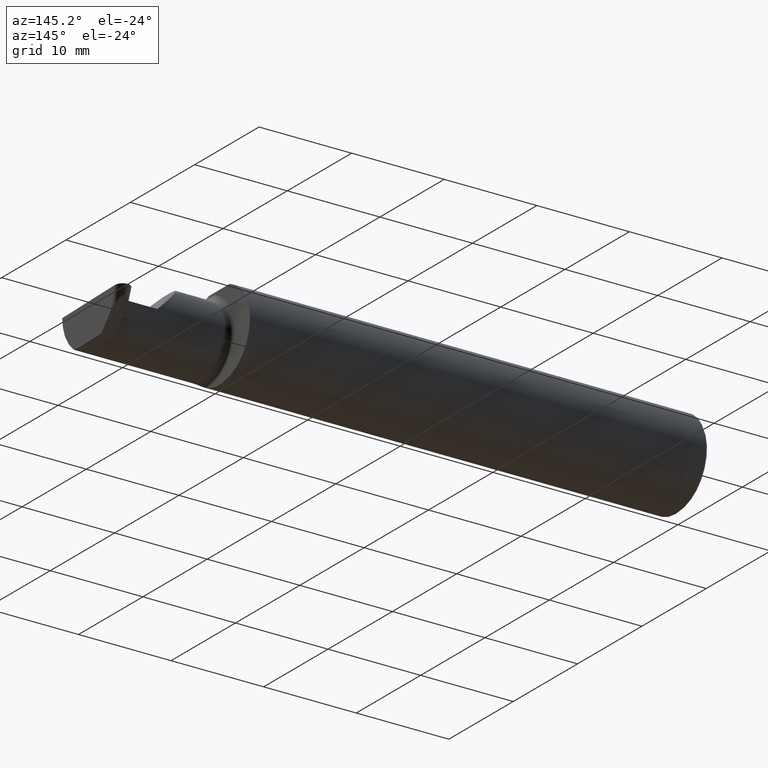
[diagram: clean part render]
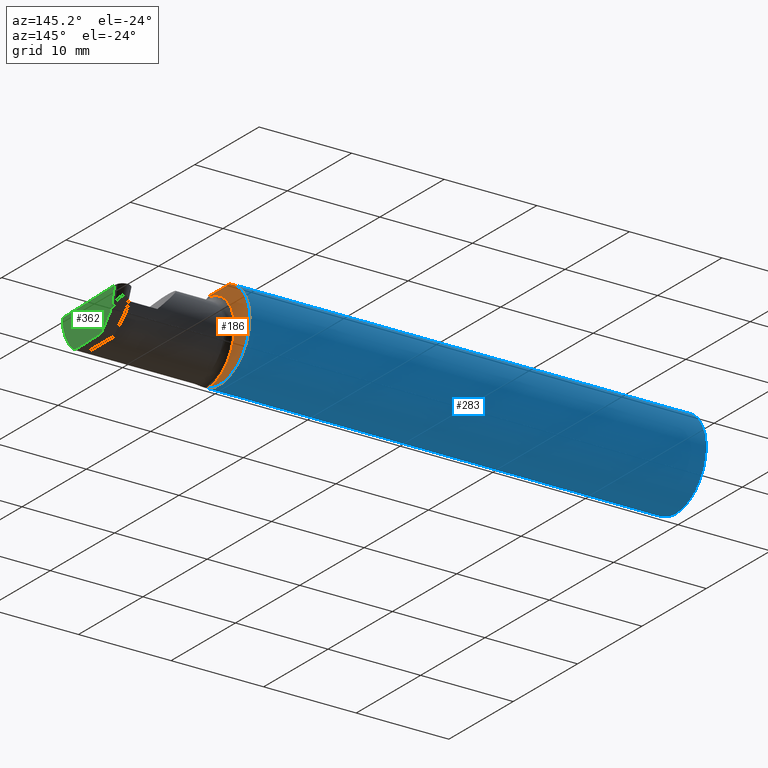
[diagram: same view with three faces highlighted in distinct colors, each labeled with its STEP entity id]
A machine part, auxiliary view with three faces highlighted in distinct colors.
Their STEP definitions:

[orange] entity #186 — the highlighted planar face has unit normal (1, 0, 0).
#16 = CIRCLE ( 'NONE', #401, 0.1873499999999999888 ) ;
#28 = ORIENTED_EDGE ( 'NONE', *, *, #264, .T. ) ;
#34 = CARTESIAN_POINT ( 'NONE',  ( 1.949999999999999956, -0.08335000000000000742, 0.000000000000000000 ) ) ;
#55 = VERTEX_POINT ( 'NONE', #128 ) ;
#90 = DIRECTION ( 'NONE',  ( -1.000000000000000000, -3.506966766154694863E-17, -0.000000000000000000 ) ) ;
#93 = CARTESIAN_POINT ( 'NONE',  ( 1.949999999999999956, 0.1873499999999999055, 0.000000000000000000 ) ) ;
#98 = CARTESIAN_POINT ( 'NONE',  ( 1.949999999999999956, 0.06325108694718235836, 0.1763499999999999235 ) ) ;
#128 = CARTESIAN_POINT ( 'NONE',  ( 1.949999999999999956, -0.06851976604679065053, -0.1743704796142198643 ) ) ;
#144 = CARTESIAN_POINT ( 'NONE',  ( 1.949999999999999956, -0.06851976604679065053, 0.1743704796142198643 ) ) ;
#157 = ORIENTED_EDGE ( 'NONE', *, *, #617, .T. ) ;
#173 = ORIENTED_EDGE ( 'NONE', *, *, #418, .F. ) ;
#180 = CIRCLE ( 'NONE', #250, 0.1873499999999999888 ) ;
#185 = ORIENTED_EDGE ( 'NONE', *, *, #475, .T. ) ;
#186 = ADVANCED_FACE ( 'NONE', ( #305 ), #461, .T. ) ;
#214 = LINE ( 'NONE', #428, #518 ) ;
#226 = EDGE_LOOP ( 'NONE', ( #185, #173, #157, #28 ) ) ;
#250 = AXIS2_PLACEMENT_3D ( 'NONE', #269, #590, #533 ) ;
#264 = EDGE_CURVE ( 'NONE', #650, #55, #562, .T. ) ;
#269 = CARTESIAN_POINT ( 'NONE',  ( 1.949999999999999956, 0.000000000000000000, 0.000000000000000000 ) ) ;
#301 = DIRECTION ( 'NONE',  ( 0.000000000000000000, -1.000000000000000000, 0.000000000000000000 ) ) ;
#305 = FACE_OUTER_BOUND ( 'NONE', #226, .T. ) ;
#341 = AXIS2_PLACEMENT_3D ( 'NONE', #34, #90, #301 ) ;
#365 = DIRECTION ( 'NONE',  ( -3.506966766154694863E-17, 1.000000000000000000, 0.000000000000000000 ) ) ;
#373 = CARTESIAN_POINT ( 'NONE',  ( 1.949999999999999956, -0.06325108694718283020, 0.1763499999999999235 ) ) ;
#401 = AXIS2_PLACEMENT_3D ( 'NONE', #633, #569, #566 ) ;
#418 = EDGE_CURVE ( 'NONE', #597, #655, #214, .T. ) ;
#428 = CARTESIAN_POINT ( 'NONE',  ( 1.949999999999999956, 0.1873499999999998222, 0.1763499999999999235 ) ) ;
#461 = PLANE ( 'NONE',  #674 ) ;
#466 = DIRECTION ( 'NONE',  ( 1.000000000000000000, 3.506966766154694863E-17, 0.000000000000000000 ) ) ;
#475 = EDGE_CURVE ( 'NONE', #55, #655, #16, .T. ) ;
#518 = VECTOR ( 'NONE', #653, 39.37007874015748143 ) ;
#533 = DIRECTION ( 'NONE',  ( 0.000000000000000000, 1.000000000000000000, 0.000000000000000000 ) ) ;
#562 = CIRCLE ( 'NONE', #341, 0.1749999999999999889 ) ;
#566 = DIRECTION ( 'NONE',  ( 0.000000000000000000, 1.000000000000000000, 0.000000000000000000 ) ) ;
#569 = DIRECTION ( 'NONE',  ( 1.000000000000000000, 3.506966766154694863E-17, 0.000000000000000000 ) ) ;
#590 = DIRECTION ( 'NONE',  ( 1.000000000000000000, 3.506966766154694863E-17, 0.000000000000000000 ) ) ;
#597 = VERTEX_POINT ( 'NONE', #373 ) ;
#617 = EDGE_CURVE ( 'NONE', #597, #650, #180, .T. ) ;
#633 = CARTESIAN_POINT ( 'NONE',  ( 1.949999999999999956, 0.000000000000000000, 0.000000000000000000 ) ) ;
#650 = VERTEX_POINT ( 'NONE', #144 ) ;
#653 = DIRECTION ( 'NONE',  ( -3.506966766154694863E-17, 1.000000000000000000, 0.000000000000000000 ) ) ;
#655 = VERTEX_POINT ( 'NONE', #98 ) ;
#674 = AXIS2_PLACEMENT_3D ( 'NONE', #93, #466, #365 ) ;

[blue] entity #283 — the highlighted cylindrical surface (partial cylindrical patch) has radius 4.7587 mm, axis along (-1, -0, -0).
#16 = CIRCLE ( 'NONE', #401, 0.1873499999999999888 ) ;
#17 = DIRECTION ( 'NONE',  ( -1.000000000000000000, -0.000000000000000000, -0.000000000000000000 ) ) ;
#37 = LINE ( 'NONE', #413, #609 ) ;
#44 = CARTESIAN_POINT ( 'NONE',  ( 0.000000000000000000, 0.06325108694718235836, 0.1763499999999999235 ) ) ;
#48 = CARTESIAN_POINT ( 'NONE',  ( 1.951829077486400221, -0.08839624499054647699, 0.1652742498708037466 ) ) ;
#52 = CARTESIAN_POINT ( 'NONE',  ( 1.974999999999999867, -0.1172600179964006784, 0.1461167706989303650 ) ) ;
#55 = VERTEX_POINT ( 'NONE', #128 ) ;
#68 = DIRECTION ( 'NONE',  ( -1.000000000000000000, -0.000000000000000000, -0.000000000000000000 ) ) ;
#74 = EDGE_CURVE ( 'NONE', #644, #685, #574, .T. ) ;
#81 = VECTOR ( 'NONE', #255, 39.37007874015748143 ) ;
#85 = CARTESIAN_POINT ( 'NONE',  ( 2.202189699843948301, -0.1873500000000000443, 0.05781030015605120170 ) ) ;
#89 = CARTESIAN_POINT ( 'NONE',  ( 1.951843912362378308, -0.08846956905169088559, -0.1652353808078972919 ) ) ;
#97 = CARTESIAN_POINT ( 'NONE',  ( 2.488131149766799943, -0.1873499999999999888, 0.000000000000000000 ) ) ;
#98 = CARTESIAN_POINT ( 'NONE',  ( 1.949999999999999956, 0.06325108694718235836, 0.1763499999999999235 ) ) ;
#102 = B_SPLINE_CURVE_WITH_KNOTS ( 'NONE', 3,
 ( #308, #151, #202, #48, #683, #344, #567, #254, #704, #397, #171, #454 ),
 .UNSPECIFIED., .F., .F.,
 ( 4, 2, 2, 2, 2, 4 ),
 ( 4.423516731080767705E-05, 0.0004615475116586702166, 0.0008788598560065327562, 0.001296172200354395350, 0.001504828372528326267, 0.001713484544702257402 ),
 .UNSPECIFIED. ) ;
#113 = VERTEX_POINT ( 'NONE', #52 ) ;
#114 = EDGE_CURVE ( 'NONE', #650, #113, #102, .T. ) ;
#119 = VERTEX_POINT ( 'NONE', #573 ) ;
#122 = EDGE_LOOP ( 'NONE', ( #215, #328, #492, #141, #364, #383, #278, #659, #560, #368, #335, #354, #600 ) ) ;
#128 = CARTESIAN_POINT ( 'NONE',  ( 1.949999999999999956, -0.06851976604679065053, -0.1743704796142198643 ) ) ;
#129 = CARTESIAN_POINT ( 'NONE',  ( 2.488131149766799943, -0.1873499999999999888, 0.000000000000000000 ) ) ;
#137 = VERTEX_POINT ( 'NONE', #299 ) ;
#141 = ORIENTED_EDGE ( 'NONE', *, *, #451, .T. ) ;
#144 = CARTESIAN_POINT ( 'NONE',  ( 1.949999999999999956, -0.06851976604679065053, 0.1743704796142198643 ) ) ;
#146 = DIRECTION ( 'NONE',  ( 1.000000000000000000, 0.000000000000000000, 0.000000000000000000 ) ) ;
#147 = VECTOR ( 'NONE', #17, 39.37007874015748143 ) ;
#151 = CARTESIAN_POINT ( 'NONE',  ( 1.949999999999999956, -0.07367581953296703512, 0.1723443821957854338 ) ) ;
#156 = LINE ( 'NONE', #537, #608 ) ;
#159 = AXIS2_PLACEMENT_3D ( 'NONE', #592, #146, #190 ) ;
#169 = CARTESIAN_POINT ( 'NONE',  ( 0.000000000000000000, 0.000000000000000000, 0.000000000000000000 ) ) ;
#171 = CARTESIAN_POINT ( 'NONE',  ( 1.972161949849307927, -0.1172600179964061184, 0.1461167706989260073 ) ) ;
#176 = VERTEX_POINT ( 'NONE', #97 ) ;
#180 = CIRCLE ( 'NONE', #250, 0.1873499999999999888 ) ;
#184 = CARTESIAN_POINT ( 'NONE',  ( 2.487084196965268390, -0.1623470442677540926, -0.1099340280425339100 ) ) ;
#187 = CARTESIAN_POINT ( 'NONE',  ( 2.487121452143546296, -0.1873500000000000165, -0.05781030015605123640 ) ) ;
#190 = DIRECTION ( 'NONE',  ( 0.000000000000000000, 0.000000000000000000, -1.000000000000000000 ) ) ;
#202 = CARTESIAN_POINT ( 'NONE',  ( 1.950353553376444671, -0.07868116735658675642, 0.1701139256562800295 ) ) ;
#207 = LINE ( 'NONE', #539, #147 ) ;
#215 = ORIENTED_EDGE ( 'NONE', *, *, #564, .F. ) ;
#232 = EDGE_CURVE ( 'NONE', #685, #119, #237, .T. ) ;
#236 = CARTESIAN_POINT ( 'NONE',  ( 1.972174967710398796, -0.1172600179964006228, -0.1461167706989304205 ) ) ;
#237 = CIRCLE ( 'NONE', #159, 0.1873499999999999888 ) ;
#250 = AXIS2_PLACEMENT_3D ( 'NONE', #269, #590, #533 ) ;
#254 = CARTESIAN_POINT ( 'NONE',  ( 1.963163223656403389, -0.1119926267047277602, 0.1502091925606062750 ) ) ;
#255 = DIRECTION ( 'NONE',  ( -1.000000000000000000, -0.000000000000000000, -0.000000000000000000 ) ) ;
#269 = CARTESIAN_POINT ( 'NONE',  ( 1.949999999999999956, 0.000000000000000000, 0.000000000000000000 ) ) ;
#278 = ORIENTED_EDGE ( 'NONE', *, *, #617, .F. ) ;
#283 = ADVANCED_FACE ( 'NONE', ( #638 ), #557, .T. ) ;
#293 = VERTEX_POINT ( 'NONE', #488 ) ;
#294 = DIRECTION ( 'NONE',  ( 1.000000000000000000, 3.506966766154694863E-17, 0.000000000000000000 ) ) ;
#299 = CARTESIAN_POINT ( 'NONE',  ( 1.974999999999999867, -0.1172600179964005396, -0.1461167706989303927 ) ) ;
#300 = CARTESIAN_POINT ( 'NONE',  ( 1.949999999999999956, -0.06851976604679065053, -0.1743704796142198643 ) ) ;
#308 = CARTESIAN_POINT ( 'NONE',  ( 1.949999999999999956, -0.06851976604679065053, 0.1743704796142198643 ) ) ;
#312 = B_SPLINE_CURVE_WITH_KNOTS ( 'NONE', 3,
 ( #626, #236, #517, #456, #581, #411, #677, #510, #89, #460, #681, #300 ),
 .UNSPECIFIED., .F., .F.,
 ( 4, 2, 2, 2, 2, 4 ),
 ( 1.967976973726874814E-07, 0.0002120314145722347263, 0.0004238660314470967276, 0.0008475352651968083703, 0.001271204498946519905, 0.001694873732696231547 ),
 .UNSPECIFIED. ) ;
#322 = VECTOR ( 'NONE', #670, 39.37007874015748143 ) ;
#328 = ORIENTED_EDGE ( 'NONE', *, *, #542, .T. ) ;
#335 = ORIENTED_EDGE ( 'NONE', *, *, #657, .F. ) ;
#344 = CARTESIAN_POINT ( 'NONE',  ( 1.956287624083520305, -0.1021858045380145824, 0.1571187174372875861 ) ) ;
#353 =( BOUNDED_CURVE ( )  B_SPLINE_CURVE ( 3, ( #577, #85, #689, #467 ),
 .UNSPECIFIED., .F., .T. ) 
 B_SPLINE_CURVE_WITH_KNOTS ( ( 4, 4 ),
 ( 4.712388980384688786, 5.606916381293139295 ),
 .UNSPECIFIED. ) 
 CURVE ( )  GEOMETRIC_REPRESENTATION_ITEM ( )  RATIONAL_B_SPLINE_CURVE ( ( 1.000000000000000000, 0.9344226172588797619, 0.9344226172588797619, 1.000000000000000000 ) ) 
 REPRESENTATION_ITEM ( '' )  );
#354 = ORIENTED_EDGE ( 'NONE', *, *, #475, .F. ) ;
#356 = AXIS2_PLACEMENT_3D ( 'NONE', #516, #525, #695 ) ;
#363 = CARTESIAN_POINT ( 'NONE',  ( 0.009999999999999346217, -0.06325108694718235836, 0.1763499999999999235 ) ) ;
#364 = ORIENTED_EDGE ( 'NONE', *, *, #464, .F. ) ;
#366 = LINE ( 'NONE', #44, #81 ) ;
#368 = ORIENTED_EDGE ( 'NONE', *, *, #232, .T. ) ;
#373 = CARTESIAN_POINT ( 'NONE',  ( 1.949999999999999956, -0.06325108694718283020, 0.1763499999999999235 ) ) ;
#377 = EDGE_CURVE ( 'NONE', #644, #597, #393, .T. ) ;
#383 = ORIENTED_EDGE ( 'NONE', *, *, #114, .F. ) ;
#384 = CARTESIAN_POINT ( 'NONE',  ( 2.113883229301068312, -0.1172600179964003175, 0.1461167706989304760 ) ) ;
#393 = LINE ( 'NONE', #607, #322 ) ;
#394 =( BOUNDED_CURVE ( )  B_SPLINE_CURVE ( 3, ( #622, #184, #187, #129 ),
 .UNSPECIFIED., .F., .F. ) 
 B_SPLINE_CURVE_WITH_KNOTS ( ( 4, 4 ),
 ( 5.852427379562187504, 6.746954780470635349 ),
 .UNSPECIFIED. ) 
 CURVE ( )  GEOMETRIC_REPRESENTATION_ITEM ( )  RATIONAL_B_SPLINE_CURVE ( ( 1.000000000000000000, 0.9344226172588802060, 0.9344226172588802060, 1.000000000000000000 ) ) 
 REPRESENTATION_ITEM ( '' )  );
#397 = CARTESIAN_POINT ( 'NONE',  ( 1.969481469043492305, -0.1163560528186166343, 0.1468472430636323378 ) ) ;
#401 = AXIS2_PLACEMENT_3D ( 'NONE', #633, #569, #566 ) ;
#411 = CARTESIAN_POINT ( 'NONE',  ( 1.958439486659306894, -0.1064616213911157294, -0.1542305641651501580 ) ) ;
#413 = CARTESIAN_POINT ( 'NONE',  ( 2.205930449999999876, -0.1172600179964006090, 0.1461167706989303927 ) ) ;
#421 = VERTEX_POINT ( 'NONE', #384 ) ;
#451 = EDGE_CURVE ( 'NONE', #293, #421, #353, .T. ) ;
#454 = CARTESIAN_POINT ( 'NONE',  ( 1.974999999999999867, -0.1172600179964006784, 0.1461167706989303650 ) ) ;
#456 = CARTESIAN_POINT ( 'NONE',  ( 1.965028532764137914, -0.1137241120808234196, -0.1488947809299404346 ) ) ;
#460 = CARTESIAN_POINT ( 'NONE',  ( 1.950358271039143165, -0.07873626113568077400, -0.1700887912276895508 ) ) ;
#464 = EDGE_CURVE ( 'NONE', #113, #421, #37, .T. ) ;
#467 = CARTESIAN_POINT ( 'NONE',  ( 2.113883229301068312, -0.1172600179964003175, 0.1461167706989304760 ) ) ;
#475 = EDGE_CURVE ( 'NONE', #55, #655, #16, .T. ) ;
#476 = CARTESIAN_POINT ( 'NONE',  ( 2.488026713523223243, -0.1172600179964006090, -0.1461167706989303927 ) ) ;
#488 = CARTESIAN_POINT ( 'NONE',  ( 2.260000000000000231, -0.1873499999999999888, 2.939152317953647352E-17 ) ) ;
#492 = ORIENTED_EDGE ( 'NONE', *, *, #675, .T. ) ;
#510 = CARTESIAN_POINT ( 'NONE',  ( 1.952960551809340917, -0.09317341542745738447, -0.1626248379125197208 ) ) ;
#514 = AXIS2_PLACEMENT_3D ( 'NONE', #169, #68, #703 ) ;
#516 = CARTESIAN_POINT ( 'NONE',  ( 0.009999999999999346217, 0.000000000000000000, 0.000000000000000000 ) ) ;
#517 = CARTESIAN_POINT ( 'NONE',  ( 1.969511795768554396, -0.1163687266324233555, -0.1468371510166789906 ) ) ;
#525 = DIRECTION ( 'NONE',  ( 1.000000000000000000, 0.000000000000000000, 0.000000000000000000 ) ) ;
#529 = EDGE_CURVE ( 'NONE', #137, #55, #312, .T. ) ;
#533 = DIRECTION ( 'NONE',  ( 0.000000000000000000, 1.000000000000000000, 0.000000000000000000 ) ) ;
#537 = CARTESIAN_POINT ( 'NONE',  ( 2.205930449999999876, -0.1172600179964006090, -0.1461167706989303927 ) ) ;
#539 = CARTESIAN_POINT ( 'NONE',  ( 3.749399456654646757E-32, -0.1873499999999999610, 3.061616997868383634E-16 ) ) ;
#542 = EDGE_CURVE ( 'NONE', #661, #176, #394, .T. ) ;
#557 = CYLINDRICAL_SURFACE ( 'NONE', #514, 0.1873499999999999888 ) ;
#560 = ORIENTED_EDGE ( 'NONE', *, *, #74, .T. ) ;
#564 = EDGE_CURVE ( 'NONE', #661, #137, #156, .T. ) ;
#566 = DIRECTION ( 'NONE',  ( 0.000000000000000000, 1.000000000000000000, 0.000000000000000000 ) ) ;
#567 = CARTESIAN_POINT ( 'NONE',  ( 1.958475602106621860, -0.1064978748893406074, 0.1542035505680383611 ) ) ;
#569 = DIRECTION ( 'NONE',  ( 1.000000000000000000, 3.506966766154694863E-17, 0.000000000000000000 ) ) ;
#573 = CARTESIAN_POINT ( 'NONE',  ( 0.009999999999999346217, 0.06325108694718235836, 0.1763499999999999235 ) ) ;
#574 = CIRCLE ( 'NONE', #356, 0.1873499999999999888 ) ;
#577 = CARTESIAN_POINT ( 'NONE',  ( 2.260000000000000231, -0.1873499999999999888, 2.939152317953647352E-17 ) ) ;
#581 = CARTESIAN_POINT ( 'NONE',  ( 1.963203859946833330, -0.1120371980050637317, -0.1501764597936559864 ) ) ;
#590 = DIRECTION ( 'NONE',  ( 1.000000000000000000, 3.506966766154694863E-17, 0.000000000000000000 ) ) ;
#592 = CARTESIAN_POINT ( 'NONE',  ( 0.009999999999999346217, 0.000000000000000000, 0.000000000000000000 ) ) ;
#597 = VERTEX_POINT ( 'NONE', #373 ) ;
#600 = ORIENTED_EDGE ( 'NONE', *, *, #529, .F. ) ;
#607 = CARTESIAN_POINT ( 'NONE',  ( 0.000000000000000000, -0.06325108694718235836, 0.1763499999999999235 ) ) ;
#608 = VECTOR ( 'NONE', #692, 39.37007874015748143 ) ;
#609 = VECTOR ( 'NONE', #294, 39.37007874015748143 ) ;
#612 = CARTESIAN_POINT ( 'NONE',  ( 0.009999999999999346217, 0.000000000000000000, -0.1873499999999999888 ) ) ;
#617 = EDGE_CURVE ( 'NONE', #597, #650, #180, .T. ) ;
#622 = CARTESIAN_POINT ( 'NONE',  ( 2.488026713523223243, -0.1172600179964006090, -0.1461167706989303927 ) ) ;
#626 = CARTESIAN_POINT ( 'NONE',  ( 1.974999999999999867, -0.1172600179964005396, -0.1461167706989303927 ) ) ;
#633 = CARTESIAN_POINT ( 'NONE',  ( 1.949999999999999956, 0.000000000000000000, 0.000000000000000000 ) ) ;
#638 = FACE_OUTER_BOUND ( 'NONE', #122, .T. ) ;
#644 = VERTEX_POINT ( 'NONE', #363 ) ;
#650 = VERTEX_POINT ( 'NONE', #144 ) ;
#655 = VERTEX_POINT ( 'NONE', #98 ) ;
#657 = EDGE_CURVE ( 'NONE', #655, #119, #366, .T. ) ;
#659 = ORIENTED_EDGE ( 'NONE', *, *, #377, .F. ) ;
#661 = VERTEX_POINT ( 'NONE', #476 ) ;
#670 = DIRECTION ( 'NONE',  ( 1.000000000000000000, 0.000000000000000000, 0.000000000000000000 ) ) ;
#675 = EDGE_CURVE ( 'NONE', #176, #293, #207, .T. ) ;
#677 = CARTESIAN_POINT ( 'NONE',  ( 1.956304331342286762, -0.1022198306720689676, -0.1570962426853819427 ) ) ;
#681 = CARTESIAN_POINT ( 'NONE',  ( 1.949999999999999067, -0.07368234487347190276, -0.1723418180300748115 ) ) ;
#683 = CARTESIAN_POINT ( 'NONE',  ( 1.952945243422982591, -0.09312071749437422774, 0.1626553472577906834 ) ) ;
#685 = VERTEX_POINT ( 'NONE', #612 ) ;
#689 = CARTESIAN_POINT ( 'NONE',  ( 2.150065971957464850, -0.1623470442677540371, 0.1099340280425340488 ) ) ;
#692 = DIRECTION ( 'NONE',  ( -1.000000000000000000, -3.506966766154694863E-17, -0.000000000000000000 ) ) ;
#695 = DIRECTION ( 'NONE',  ( 0.000000000000000000, 0.000000000000000000, -1.000000000000000000 ) ) ;
#703 = DIRECTION ( 'NONE',  ( 0.000000000000000000, 0.000000000000000000, 1.000000000000000000 ) ) ;
#704 = CARTESIAN_POINT ( 'NONE',  ( 1.965004157323697598, -0.1137044537483316436, 0.1489098419202428414 ) ) ;

[green] entity #362 — the highlighted planar face has unit normal (-0.9992, 0.0349, 0.0175).
#3 = CARTESIAN_POINT ( 'NONE',  ( 2.489143054109411057, -0.08335000000000006293, -0.1500000000000000500 ) ) ;
#5 = VECTOR ( 'NONE', #15, 39.37007874015748143 ) ;
#15 = DIRECTION ( 'NONE',  ( -0.03701744261649735079, -0.7066221440565398915, -0.7066221440565479961 ) ) ;
#18 = ORIENTED_EDGE ( 'NONE', *, *, #317, .F. ) ;
#26 = EDGE_CURVE ( 'NONE', #706, #680, #342, .T. ) ;
#29 = CARTESIAN_POINT ( 'NONE',  ( 2.488744025780163405, -0.09477667630339421667, -0.1500000000000000222 ) ) ;
#59 = VERTEX_POINT ( 'NONE', #78 ) ;
#77 = CARTESIAN_POINT ( 'NONE',  ( 2.499944547461123268, 0.1507395558974708727, 0.0004036622306032532342 ) ) ;
#78 = CARTESIAN_POINT ( 'NONE',  ( 2.499932917084233264, 0.1506083980881225692, 0.000000000000000000 ) ) ;
#97 = CARTESIAN_POINT ( 'NONE',  ( 2.488131149766799943, -0.1873499999999999888, 0.000000000000000000 ) ) ;
#120 = CARTESIAN_POINT ( 'NONE',  ( 2.499980768683121024, 0.1519786885938757826, 0.000000000000000000 ) ) ;
#123 = DIRECTION ( 'NONE',  ( 0.02739170151059983765, 0.3089010440752013031, 0.9506996579664920288 ) ) ;
#124 = DIRECTION ( 'NONE',  ( -0.03489949670249307273, -0.9993908270190959842, 0.000000000000000000 ) ) ;
#129 = CARTESIAN_POINT ( 'NONE',  ( 2.488131149766799943, -0.1873499999999999888, 0.000000000000000000 ) ) ;
#134 = VECTOR ( 'NONE', #124, 39.37007874015748854 ) ;
#166 = DIRECTION ( 'NONE',  ( -0.03489949670249308661, -0.9993908270190960952, 0.000000000000000000 ) ) ;
#176 = VERTEX_POINT ( 'NONE', #97 ) ;
#177 = LINE ( 'NONE', #120, #552 ) ;
#184 = CARTESIAN_POINT ( 'NONE',  ( 2.487084196965268390, -0.1623470442677540926, -0.1099340280425339100 ) ) ;
#187 = CARTESIAN_POINT ( 'NONE',  ( 2.487121452143546296, -0.1873500000000000165, -0.05781030015605123640 ) ) ;
#193 = CARTESIAN_POINT ( 'NONE',  ( 2.489143054109411057, -0.08335000000000006293, -0.1500000000000000500 ) ) ;
#206 = VECTOR ( 'NONE', #123, 39.37007874015747433 ) ;
#208 =( BOUNDED_CURVE ( )  B_SPLINE_CURVE ( 3, ( #343, #522, #29, #193 ),
 .UNSPECIFIED., .F., .F. ) 
 B_SPLINE_CURVE_WITH_KNOTS ( ( 4, 4 ),
 ( 0.8789888184544045746, 1.107026853503847663 ),
 .UNSPECIFIED. ) 
 CURVE ( )  GEOMETRIC_REPRESENTATION_ITEM ( )  RATIONAL_B_SPLINE_CURVE ( ( 1.000000000000000000, 0.9956712472009929815, 0.9956712472009929815, 1.000000000000000000 ) ) 
 REPRESENTATION_ITEM ( '' )  );
#220 = CARTESIAN_POINT ( 'NONE',  ( 2.494159529209134529, 0.06030305154315079852, -0.1500000000000000500 ) ) ;
#227 = DIRECTION ( 'NONE',  ( -0.03489949670249307273, -0.9993908270190959842, 0.000000000000000000 ) ) ;
#252 = ORIENTED_EDGE ( 'NONE', *, *, #26, .F. ) ;
#280 = ORIENTED_EDGE ( 'NONE', *, *, #490, .T. ) ;
#281 = CARTESIAN_POINT ( 'NONE',  ( 2.499980768683121024, 0.1519786885938757826, 0.000000000000000000 ) ) ;
#317 = EDGE_CURVE ( 'NONE', #406, #706, #664, .T. ) ;
#325 = EDGE_CURVE ( 'NONE', #59, #176, #177, .T. ) ;
#342 = LINE ( 'NONE', #565, #134 ) ;
#343 = CARTESIAN_POINT ( 'NONE',  ( 2.488026713523223243, -0.1172600179964006090, -0.1461167706989303927 ) ) ;
#362 = ADVANCED_FACE ( 'NONE', ( #541 ), #619, .F. ) ;
#378 = AXIS2_PLACEMENT_3D ( 'NONE', #281, #483, #227 ) ;
#394 =( BOUNDED_CURVE ( )  B_SPLINE_CURVE ( 3, ( #622, #184, #187, #129 ),
 .UNSPECIFIED., .F., .F. ) 
 B_SPLINE_CURVE_WITH_KNOTS ( ( 4, 4 ),
 ( 5.852427379562187504, 6.746954780470635349 ),
 .UNSPECIFIED. ) 
 CURVE ( )  GEOMETRIC_REPRESENTATION_ITEM ( )  RATIONAL_B_SPLINE_CURVE ( ( 1.000000000000000000, 0.9344226172588802060, 0.9344226172588802060, 1.000000000000000000 ) ) 
 REPRESENTATION_ITEM ( '' )  );
#406 = VERTEX_POINT ( 'NONE', #651 ) ;
#440 = EDGE_CURVE ( 'NONE', #406, #59, #465, .T. ) ;
#450 = CARTESIAN_POINT ( 'NONE',  ( 2.496599625675735457, 0.1068818013178887832, -0.1034212502252615240 ) ) ;
#465 = LINE ( 'NONE', #77, #206 ) ;
#476 = CARTESIAN_POINT ( 'NONE',  ( 2.488026713523223243, -0.1172600179964006090, -0.1461167706989303927 ) ) ;
#483 = DIRECTION ( 'NONE',  ( -0.9992386149554828290, 0.03489418134010577321, 0.01745240643728358798 ) ) ;
#490 = EDGE_CURVE ( 'NONE', #661, #680, #208, .T. ) ;
#522 = CARTESIAN_POINT ( 'NONE',  ( 2.488370294460939824, -0.1061291577212408743, -0.1486999626928446339 ) ) ;
#541 = FACE_OUTER_BOUND ( 'NONE', #663, .T. ) ;
#542 = EDGE_CURVE ( 'NONE', #661, #176, #394, .T. ) ;
#552 = VECTOR ( 'NONE', #166, 39.37007874015747433 ) ;
#565 = CARTESIAN_POINT ( 'NONE',  ( 2.489440290287315172, -0.07483826952468648763, -0.1500000000000000500 ) ) ;
#619 = PLANE ( 'NONE',  #378 ) ;
#622 = CARTESIAN_POINT ( 'NONE',  ( 2.488026713523223243, -0.1172600179964006090, -0.1461167706989303927 ) ) ;
#651 = CARTESIAN_POINT ( 'NONE',  ( 2.497385173767516786, 0.1218770478189730444, -0.08842600372417708243 ) ) ;
#661 = VERTEX_POINT ( 'NONE', #476 ) ;
#663 = EDGE_LOOP ( 'NONE', ( #18, #693, #697, #676, #280, #252 ) ) ;
#664 = LINE ( 'NONE', #450, #5 ) ;
#676 = ORIENTED_EDGE ( 'NONE', *, *, #542, .F. ) ;
#680 = VERTEX_POINT ( 'NONE', #3 ) ;
#693 = ORIENTED_EDGE ( 'NONE', *, *, #440, .T. ) ;
#697 = ORIENTED_EDGE ( 'NONE', *, *, #325, .T. ) ;
#706 = VERTEX_POINT ( 'NONE', #220 ) ;